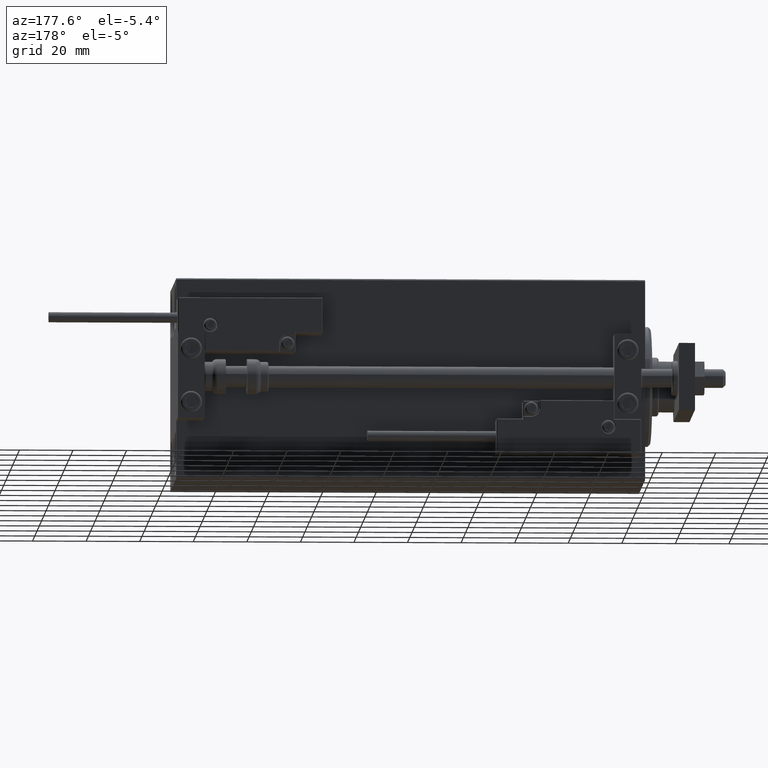
[diagram: clean part render]
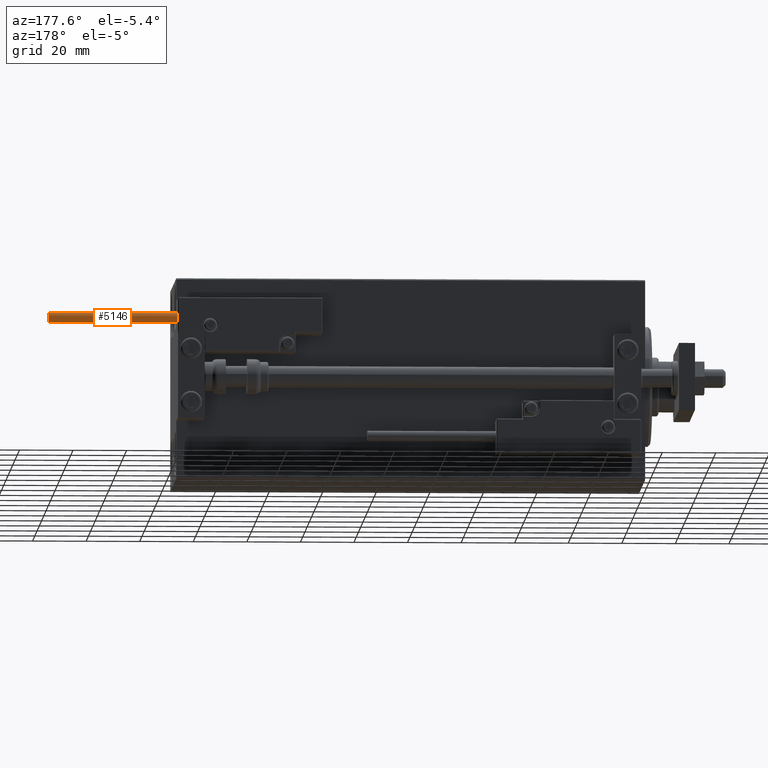
[diagram: same view with one face highlighted and labeled with its STEP entity id]
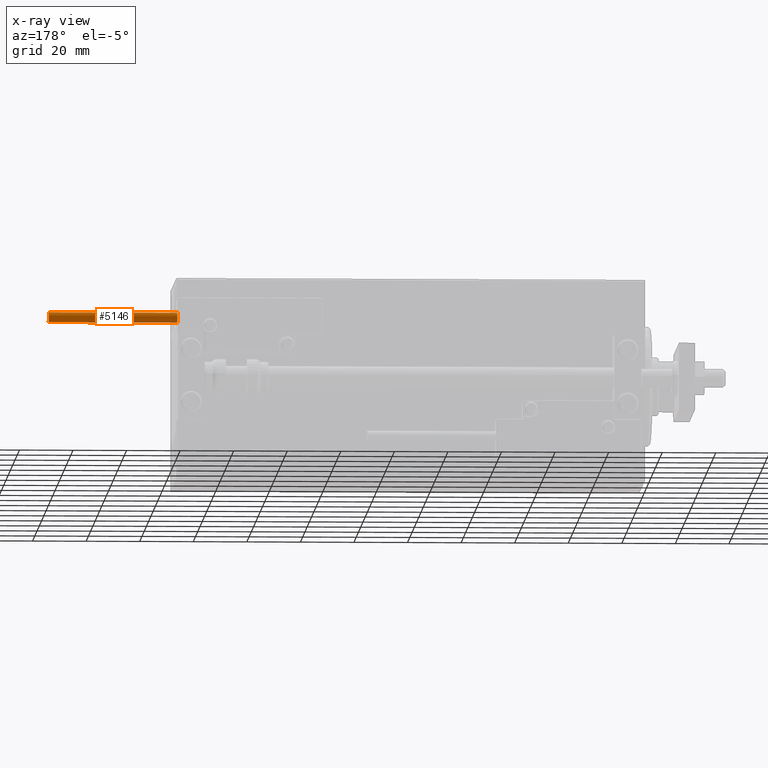
[diagram: x-ray of the same camera — body ghosted, the highlighted face saturated]
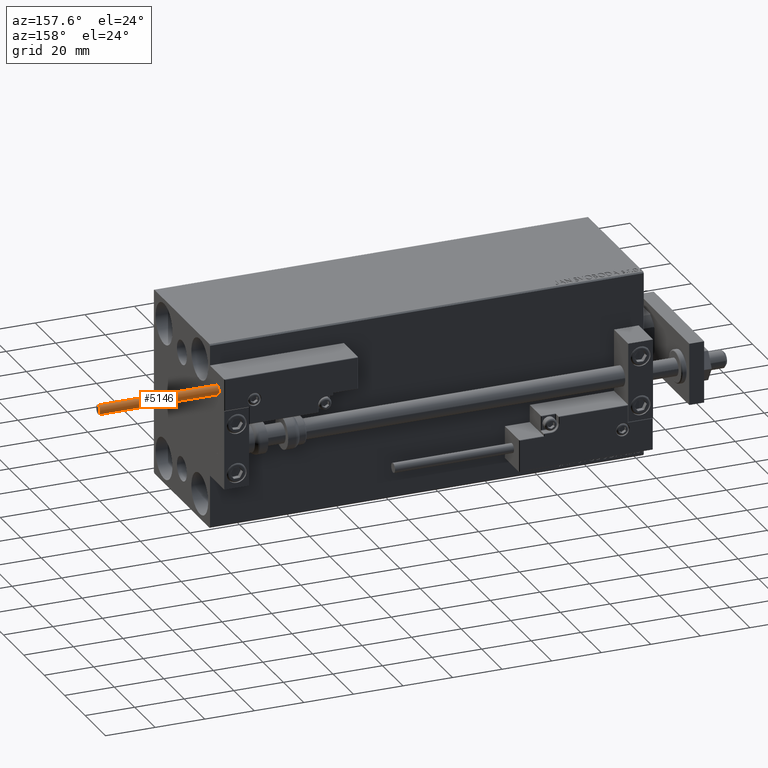
[diagram: same view with one face highlighted and labeled with its STEP entity id]
A machine part, auxiliary view. The second image highlights one B-rep face of the part: STEP entity #5146.
The next image is the same camera in x-ray: the body ghosted, the highlighted face saturated — about 0% of this face is hidden behind the body in this view.
A second angle (auxiliary view) of the same face is appended — the face is thin or edge-on in the first view.
In plain terms, the highlighted cylindrical surface (edge-blend (fillet) strip) has radius 1.9 mm, axis along (-1, -0, 0).
Its self-contained STEP definition (entity closure, byte-faithful):
#1447 = DIRECTION ( 'NONE',  ( -0.000000000000000000, -0.000000000000000000, -1.000000000000000000 ) ) ;
#2058 = DIRECTION ( 'NONE',  ( -0.000000000000000000, -0.000000000000000000, -1.000000000000000000 ) ) ;
#4709 = CARTESIAN_POINT ( 'NONE',  ( 1.899999999999999467, 2.326828918379970872E-16, 48.00000000000000000 ) ) ;
#5146 = ADVANCED_FACE ( 'NONE', ( #47764 ), #36885, .T. ) ;
#6654 = EDGE_CURVE ( 'NONE', #20318, #48436, #47399, .T. ) ;
#6825 = EDGE_CURVE ( 'NONE', #48436, #47135, #21580, .T. ) ;
#10766 = ORIENTED_EDGE ( 'NONE', *, *, #14692, .F. ) ;
#13492 = CARTESIAN_POINT ( 'NONE',  ( 0.000000000000000000, 0.000000000000000000, 0.000000000000000000 ) ) ;
#13837 = DIRECTION ( 'NONE',  ( -0.000000000000000000, -0.000000000000000000, -1.000000000000000000 ) ) ;
#14692 = EDGE_CURVE ( 'NONE', #49495, #47135, #48433, .T. ) ;
#16088 = CIRCLE ( 'NONE', #36233, 1.899999999999999467 ) ;
#16531 = DIRECTION ( 'NONE',  ( 0.000000000000000000, 0.000000000000000000, 1.000000000000000000 ) ) ;
#16702 = CARTESIAN_POINT ( 'NONE',  ( 0.000000000000000000, 0.000000000000000000, 48.00000000000000000 ) ) ;
#17277 = DIRECTION ( 'NONE',  ( 1.000000000000000000, 0.000000000000000000, 0.000000000000000000 ) ) ;
#20318 = VERTEX_POINT ( 'NONE', #4709 ) ;
#21580 = CIRCLE ( 'NONE', #24007, 1.899999999999999467 ) ;
#24007 = AXIS2_PLACEMENT_3D ( 'NONE', #13492, #16531, #17277 ) ;
#26348 = AXIS2_PLACEMENT_3D ( 'NONE', #16702, #2058, #39685 ) ;
#26880 = CARTESIAN_POINT ( 'NONE',  ( 0.000000000000000000, 0.000000000000000000, 48.00000000000000000 ) ) ;
#28300 = EDGE_LOOP ( 'NONE', ( #32938, #37455, #40623, #10766 ) ) ;
#28360 = CARTESIAN_POINT ( 'NONE',  ( -1.899999999999999467, 0.000000000000000000, 0.000000000000000000 ) ) ;
#29676 = DIRECTION ( 'NONE',  ( 0.000000000000000000, 0.000000000000000000, 1.000000000000000000 ) ) ;
#32938 = ORIENTED_EDGE ( 'NONE', *, *, #39348, .F. ) ;
#36233 = AXIS2_PLACEMENT_3D ( 'NONE', #26880, #29676, #49361 ) ;
#36885 = CYLINDRICAL_SURFACE ( 'NONE', #26348, 1.899999999999999467 ) ;
#37306 = CARTESIAN_POINT ( 'NONE',  ( -1.899999999999999467, 0.000000000000000000, 48.00000000000000000 ) ) ;
#37455 = ORIENTED_EDGE ( 'NONE', *, *, #6654, .T. ) ;
#39348 = EDGE_CURVE ( 'NONE', #20318, #49495, #16088, .T. ) ;
#39685 = DIRECTION ( 'NONE',  ( -1.000000000000000000, 0.000000000000000000, 0.000000000000000000 ) ) ;
#40623 = ORIENTED_EDGE ( 'NONE', *, *, #6825, .T. ) ;
#41740 = VECTOR ( 'NONE', #1447, 1000.000000000000000 ) ;
#43496 = VECTOR ( 'NONE', #13837, 1000.000000000000000 ) ;
#43613 = CARTESIAN_POINT ( 'NONE',  ( 1.899999999999999467, 2.326828918379970872E-16, 48.00000000000000000 ) ) ;
#44699 = CARTESIAN_POINT ( 'NONE',  ( 1.899999999999999467, 2.326828918379970872E-16, 0.000000000000000000 ) ) ;
#47135 = VERTEX_POINT ( 'NONE', #28360 ) ;
#47399 = LINE ( 'NONE', #43613, #41740 ) ;
#47439 = CARTESIAN_POINT ( 'NONE',  ( -1.899999999999999467, 0.000000000000000000, 48.00000000000000000 ) ) ;
#47764 = FACE_OUTER_BOUND ( 'NONE', #28300, .T. ) ;
#48433 = LINE ( 'NONE', #37306, #43496 ) ;
#48436 = VERTEX_POINT ( 'NONE', #44699 ) ;
#49361 = DIRECTION ( 'NONE',  ( 1.000000000000000000, 0.000000000000000000, 0.000000000000000000 ) ) ;
#49495 = VERTEX_POINT ( 'NONE', #47439 ) ;